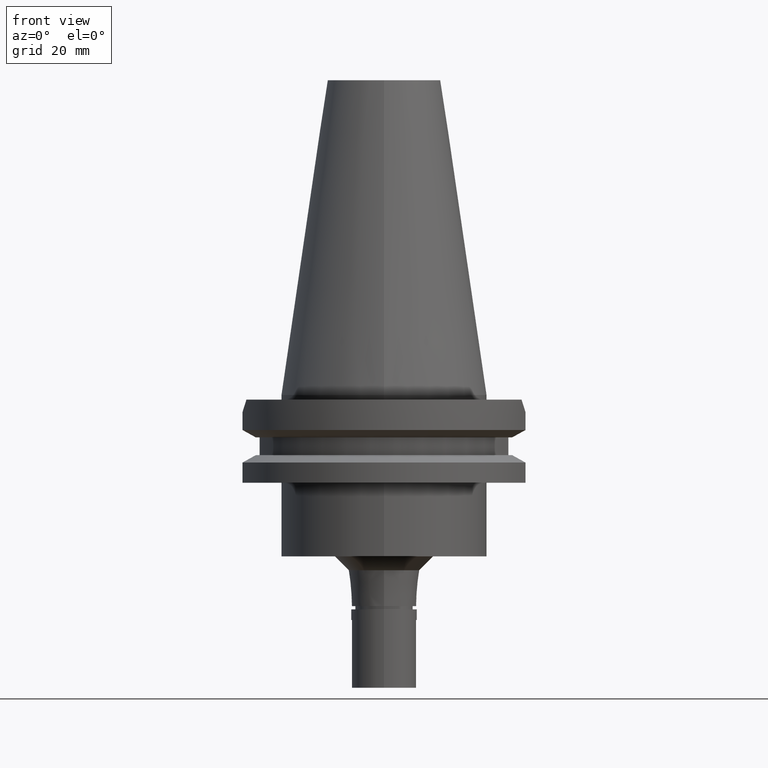
[diagram: clean part render]
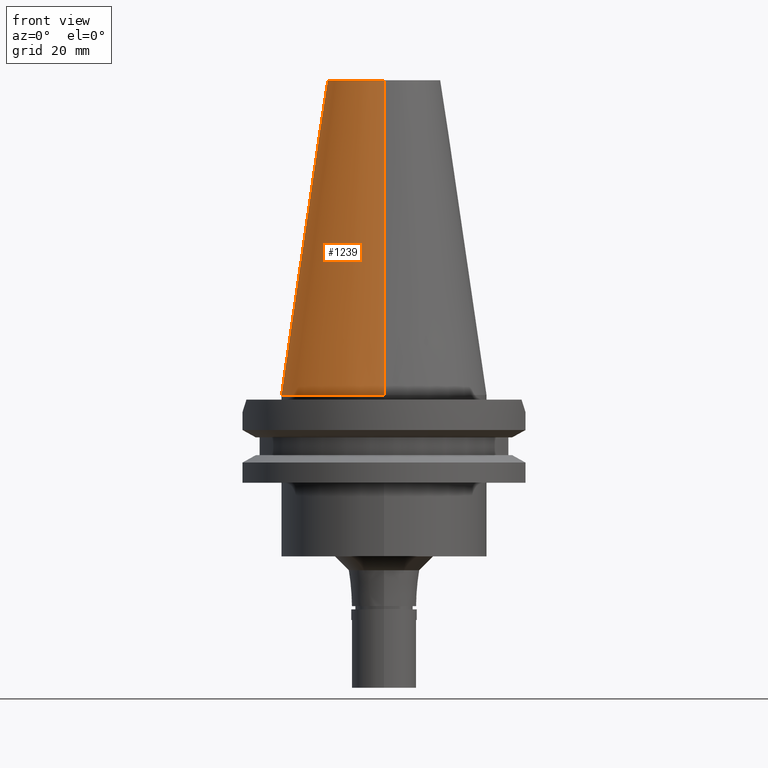
[diagram: same view with one face highlighted and labeled with its STEP entity id]
A machine part, front view. The second image highlights one B-rep face of the part: STEP entity #1239.
In plain terms, the highlighted conical surface has half-angle 8.297 deg.
Its self-contained STEP definition (entity closure, byte-faithful):
#156 = DIRECTION ( 'NONE',  ( 0.0000000000000000000, 0.1443069799456937474, -0.9895329683941577192 ) ) ;
#244 = DIRECTION ( 'NONE',  ( 0.0000000000000000000, -1.000000000000000000, 0.0000000000000000000 ) ) ;
#290 = CARTESIAN_POINT ( 'NONE',  ( 0.0000000000000000000, -12.27186888070000137, 68.25000000000000000 ) ) ;
#529 = ORIENTED_EDGE ( 'NONE', *, *, #1180, .T. ) ;
#560 = DIRECTION ( 'NONE',  ( 0.0000000000000000000, -1.000000000000000000, 0.0000000000000000000 ) ) ;
#625 = VERTEX_POINT ( 'NONE', #1278 ) ;
#793 = CARTESIAN_POINT ( 'NONE',  ( 0.0000000000000000000, 1.642557519355999895E-14, -3.126388037344000570E-13 ) ) ;
#825 = EDGE_CURVE ( 'NONE', #2687, #625, #2718, .T. ) ;
#884 = DIRECTION ( 'NONE',  ( 0.0000000000000000000, -1.000000000000000000, 0.0000000000000000000 ) ) ;
#1130 = FACE_OUTER_BOUND ( 'NONE', #1870, .T. ) ;
#1180 = EDGE_CURVE ( 'NONE', #2181, #1375, #1606, .T. ) ;
#1239 = ADVANCED_FACE ( 'NONE', ( #1130 ), #2003, .T. ) ;
#1278 = CARTESIAN_POINT ( 'NONE',  ( 0.0000000000000000000, -22.22500000000000142, -2.131628207279999655E-13 ) ) ;
#1375 = VERTEX_POINT ( 'NONE', #2397 ) ;
#1425 = DIRECTION ( 'NONE',  ( 0.0000000000000000000, -0.1443069799456937474, -0.9895329683941577192 ) ) ;
#1470 = CARTESIAN_POINT ( 'NONE',  ( 0.0000000000000000000, 1.642557519355999895E-14, 68.25000000000000000 ) ) ;
#1606 = LINE ( 'NONE', #2584, #1960 ) ;
#1617 = AXIS2_PLACEMENT_3D ( 'NONE', #793, #1776, #560 ) ;
#1721 = AXIS2_PLACEMENT_3D ( 'NONE', #1470, #2454, #244 ) ;
#1776 = DIRECTION ( 'NONE',  ( 0.0000000000000000000, 0.0000000000000000000, -1.000000000000000000 ) ) ;
#1820 = CARTESIAN_POINT ( 'NONE',  ( 0.0000000000000000000, 1.642557519355999895E-14, 34.12500000000000000 ) ) ;
#1870 = EDGE_LOOP ( 'NONE', ( #1949, #2600, #2778, #529 ) ) ;
#1949 = ORIENTED_EDGE ( 'NONE', *, *, #2703, .F. ) ;
#1960 = VECTOR ( 'NONE', #156, 1000.000000000000114 ) ;
#2003 = CONICAL_SURFACE ( 'NONE', #2945, 17.24843444035000317, 0.1448125860318199565 ) ;
#2015 = EDGE_CURVE ( 'NONE', #2687, #2181, #2493, .T. ) ;
#2048 = CARTESIAN_POINT ( 'NONE',  ( 0.0000000000000000000, -12.27186888070000137, 68.25000000000000000 ) ) ;
#2109 = DIRECTION ( 'NONE',  ( 0.0000000000000000000, 0.0000000000000000000, -1.000000000000000000 ) ) ;
#2179 = VECTOR ( 'NONE', #1425, 1000.000000000000114 ) ;
#2181 = VERTEX_POINT ( 'NONE', #2242 ) ;
#2242 = CARTESIAN_POINT ( 'NONE',  ( 0.0000000000000000000, 12.27186888070000137, 68.25000000000000000 ) ) ;
#2397 = CARTESIAN_POINT ( 'NONE',  ( 0.0000000000000000000, 22.22500000000000142, -2.131628207279999655E-13 ) ) ;
#2454 = DIRECTION ( 'NONE',  ( 0.0000000000000000000, 0.0000000000000000000, -1.000000000000000000 ) ) ;
#2493 = CIRCLE ( 'NONE', #1721, 12.27186888070000137 ) ;
#2584 = CARTESIAN_POINT ( 'NONE',  ( 0.0000000000000000000, 12.27186888070000137, 68.25000000000000000 ) ) ;
#2600 = ORIENTED_EDGE ( 'NONE', *, *, #825, .F. ) ;
#2687 = VERTEX_POINT ( 'NONE', #2048 ) ;
#2703 = EDGE_CURVE ( 'NONE', #625, #1375, #2756, .T. ) ;
#2718 = LINE ( 'NONE', #290, #2179 ) ;
#2756 = CIRCLE ( 'NONE', #1617, 22.22500000000000142 ) ;
#2778 = ORIENTED_EDGE ( 'NONE', *, *, #2015, .T. ) ;
#2945 = AXIS2_PLACEMENT_3D ( 'NONE', #1820, #2109, #884 ) ;